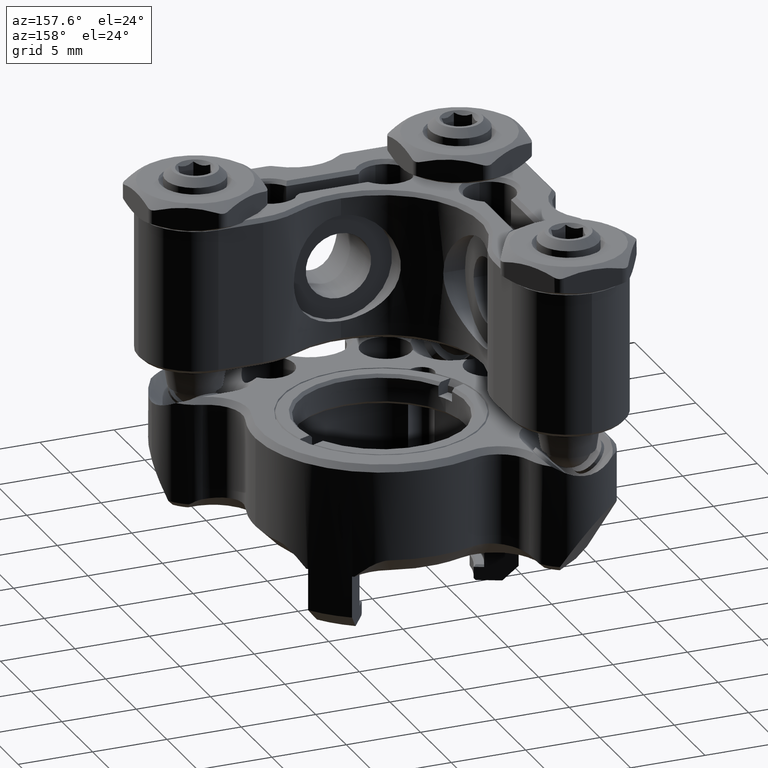
[diagram: clean part render]
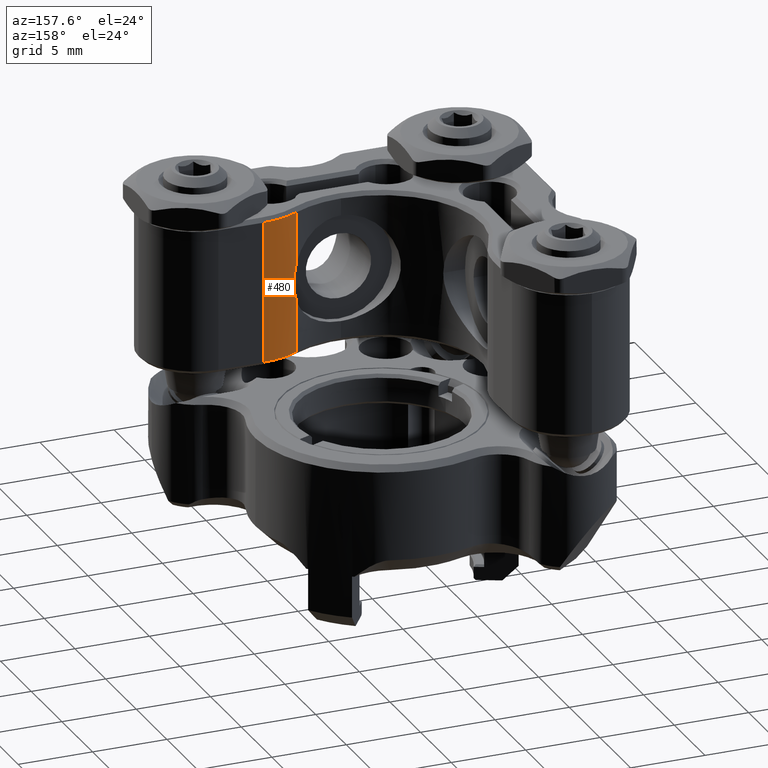
[diagram: same view with one face highlighted and labeled with its STEP entity id]
A machine part, auxiliary view. The second image highlights one B-rep face of the part: STEP entity #480.
In plain terms, the highlighted cylindrical surface (partial cylindrical patch) has radius 5 mm, axis along (-0, 0, 1).
Its self-contained STEP definition (entity closure, byte-faithful):
#36 = ORIENTED_EDGE ( 'NONE', *, *, #9105, .F. ) ;
#480 = ADVANCED_FACE ( 'NONE', ( #15231 ), #10421, .T. ) ;
#531 = VERTEX_POINT ( 'NONE', #10939 ) ;
#541 = CARTESIAN_POINT ( 'NONE',  ( -5.000000000000000000, 3.361113441611756514, -5.761233933161954646 ) ) ;
#864 = ORIENTED_EDGE ( 'NONE', *, *, #15468, .F. ) ;
#1454 = AXIS2_PLACEMENT_3D ( 'NONE', #13858, #12389, #3628 ) ;
#1682 = CARTESIAN_POINT ( 'NONE',  ( 1.085633733555855684, 3.439345563423081842, -5.715593183413480993 ) ) ;
#1775 = CARTESIAN_POINT ( 'NONE',  ( 4.749999999999992895, 3.361113441611756514, -5.761233933161954646 ) ) ;
#2516 = DIRECTION ( 'NONE',  ( 1.000000000000000000, 0.000000000000000000, 0.000000000000000000 ) ) ;
#2652 = AXIS2_PLACEMENT_3D ( 'NONE', #13105, #9436, #8470 ) ;
#2912 = CARTESIAN_POINT ( 'NONE',  ( 0.2217522953389867435, 3.599941485950977516, -5.630484072456037659 ) ) ;
#3060 = CARTESIAN_POINT ( 'NONE',  ( -4.749999999999996447, 5.880688735173795756, -5.080000000000000071 ) ) ;
#3078 = CARTESIAN_POINT ( 'NONE',  ( -0.8721858862936008316, 3.499698723110272081, -5.683074980353803873 ) ) ;
#3239 = CARTESIAN_POINT ( 'NONE',  ( -0.2198483357740653732, 3.600058262308599488, -5.630424216788355807 ) ) ;
#3628 = DIRECTION ( 'NONE',  ( 0.000000000000000000, 0.000000000000000000, -1.000000000000000000 ) ) ;
#3928 = VERTEX_POINT ( 'NONE', #5633 ) ;
#4070 = EDGE_LOOP ( 'NONE', ( #6428, #14154, #864, #6648, #36, #5398 ) ) ;
#4107 = CARTESIAN_POINT ( 'NONE',  ( -5.000000000000000000, 5.880688735173794868, -10.08000000000000007 ) ) ;
#4581 = VECTOR ( 'NONE', #5788, 1000.000000000000000 ) ;
#5172 = EDGE_CURVE ( 'NONE', #14536, #10647, #6255, .T. ) ;
#5398 = ORIENTED_EDGE ( 'NONE', *, *, #15191, .T. ) ;
#5517 = EDGE_CURVE ( 'NONE', #14536, #10379, #8456, .T. ) ;
#5633 = CARTESIAN_POINT ( 'NONE',  ( 1.289541171353889348, 3.361113441611758290, -5.761233933161952869 ) ) ;
#5788 = DIRECTION ( 'NONE',  ( -1.000000000000000000, 0.000000000000000000, 0.000000000000000000 ) ) ;
#5871 = LINE ( 'NONE', #8215, #4581 ) ;
#6255 = LINE ( 'NONE', #13637, #13621 ) ;
#6358 = AXIS2_PLACEMENT_3D ( 'NONE', #4107, #9059, #7845 ) ;
#6428 = ORIENTED_EDGE ( 'NONE', *, *, #5172, .F. ) ;
#6648 = ORIENTED_EDGE ( 'NONE', *, *, #14075, .F. ) ;
#7587 = VECTOR ( 'NONE', #11827, 1000.000000000000000 ) ;
#7845 = DIRECTION ( 'NONE',  ( 0.000000000000000000, 0.000000000000000000, -1.000000000000000000 ) ) ;
#7873 = CARTESIAN_POINT ( 'NONE',  ( -1.085658750517668025, 3.439335965293532915, -5.715598782978195125 ) ) ;
#8215 = CARTESIAN_POINT ( 'NONE',  ( -5.000000000000000000, 3.361113441611756514, -5.761233933161954646 ) ) ;
#8456 = CIRCLE ( 'NONE', #1454, 4.999999999999999112 ) ;
#8470 = DIRECTION ( 'NONE',  ( 0.000000000000000000, 2.602085213965211036E-15, -1.000000000000000000 ) ) ;
#9037 = CARTESIAN_POINT ( 'NONE',  ( -4.749999999999996447, 3.361113441611756514, -5.761233933161954646 ) ) ;
#9059 = DIRECTION ( 'NONE',  ( 1.000000000000000000, -0.000000000000000000, -0.000000000000000000 ) ) ;
#9105 = EDGE_CURVE ( 'NONE', #13116, #3928, #5871, .T. ) ;
#9387 = CIRCLE ( 'NONE', #2652, 4.999999999999999112 ) ;
#9436 = DIRECTION ( 'NONE',  ( -1.000000000000000000, 0.000000000000000000, 0.000000000000000000 ) ) ;
#9588 = B_SPLINE_CURVE_WITH_KNOTS ( 'NONE', 3,
 ( #14269, #1682, #11506, #11825, #2912, #3239, #13057, #3078, #7873, #11659 ),
 .UNSPECIFIED., .F., .F.,
 ( 4, 2, 2, 2, 4 ),
 ( 4.715967887672442876E-18, 0.0006596796358284801823, 0.001319359271656955811, 0.001979038907485431223, 0.002638718543313906852 ),
 .UNSPECIFIED. ) ;
#10379 = VERTEX_POINT ( 'NONE', #9037 ) ;
#10421 = CYLINDRICAL_SURFACE ( 'NONE', #6358, 4.999999999999999112 ) ;
#10453 = CARTESIAN_POINT ( 'NONE',  ( 4.749999999999992895, 5.880688735173795756, -5.080000000000000071 ) ) ;
#10647 = VERTEX_POINT ( 'NONE', #10453 ) ;
#10939 = CARTESIAN_POINT ( 'NONE',  ( -1.289541171353894011, 3.361113441611756514, -5.761233933161954646 ) ) ;
#11506 = CARTESIAN_POINT ( 'NONE',  ( 0.8758687427872987596, 3.498689786990900608, -5.683620792322309434 ) ) ;
#11659 = CARTESIAN_POINT ( 'NONE',  ( -1.289541171353894011, 3.361113441611756514, -5.761233933161954646 ) ) ;
#11825 = CARTESIAN_POINT ( 'NONE',  ( 0.4452364508144808775, 3.579069820924473788, -5.641011432723109564 ) ) ;
#11827 = DIRECTION ( 'NONE',  ( -1.000000000000000000, 0.000000000000000000, 0.000000000000000000 ) ) ;
#12389 = DIRECTION ( 'NONE',  ( 1.000000000000000000, 0.000000000000000000, 0.000000000000000000 ) ) ;
#13057 = CARTESIAN_POINT ( 'NONE',  ( -0.4386492774397753314, 3.579970137332291191, -5.640545416440981619 ) ) ;
#13105 = CARTESIAN_POINT ( 'NONE',  ( 4.749999999999992895, 5.880688735173794868, -10.08000000000000007 ) ) ;
#13116 = VERTEX_POINT ( 'NONE', #1775 ) ;
#13621 = VECTOR ( 'NONE', #2516, 1000.000000000000000 ) ;
#13637 = CARTESIAN_POINT ( 'NONE',  ( -5.000000000000000000, 5.880688735173795756, -5.080000000000000071 ) ) ;
#13858 = CARTESIAN_POINT ( 'NONE',  ( -4.749999999999996447, 5.880688735173794868, -10.08000000000000007 ) ) ;
#14075 = EDGE_CURVE ( 'NONE', #3928, #531, #9588, .T. ) ;
#14154 = ORIENTED_EDGE ( 'NONE', *, *, #5517, .T. ) ;
#14269 = CARTESIAN_POINT ( 'NONE',  ( 1.289541171353889348, 3.361113441611758290, -5.761233933161952869 ) ) ;
#14346 = LINE ( 'NONE', #541, #7587 ) ;
#14536 = VERTEX_POINT ( 'NONE', #3060 ) ;
#15191 = EDGE_CURVE ( 'NONE', #13116, #10647, #9387, .T. ) ;
#15231 = FACE_OUTER_BOUND ( 'NONE', #4070, .T. ) ;
#15468 = EDGE_CURVE ( 'NONE', #531, #10379, #14346, .T. ) ;